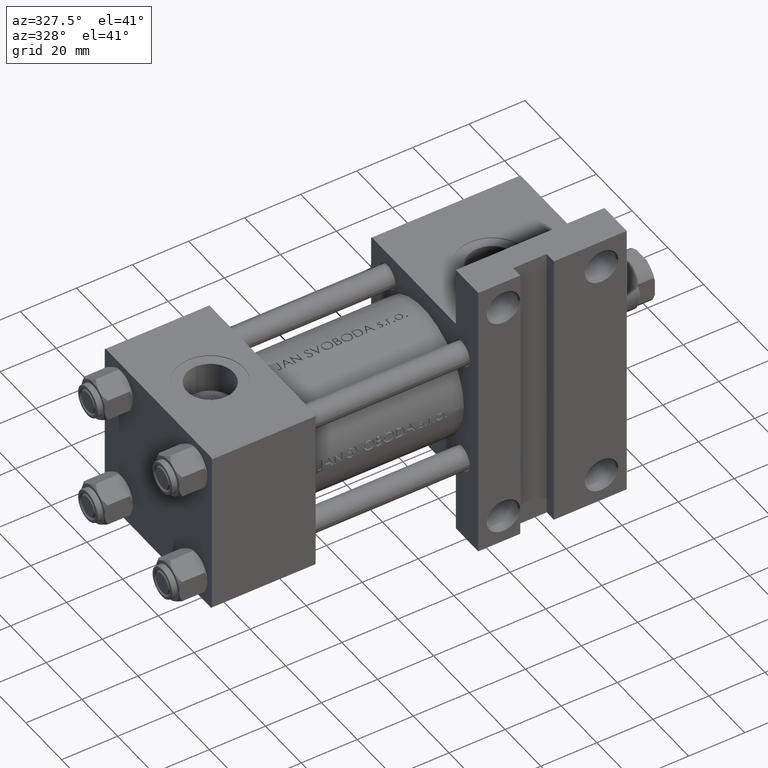
[diagram: clean part render]
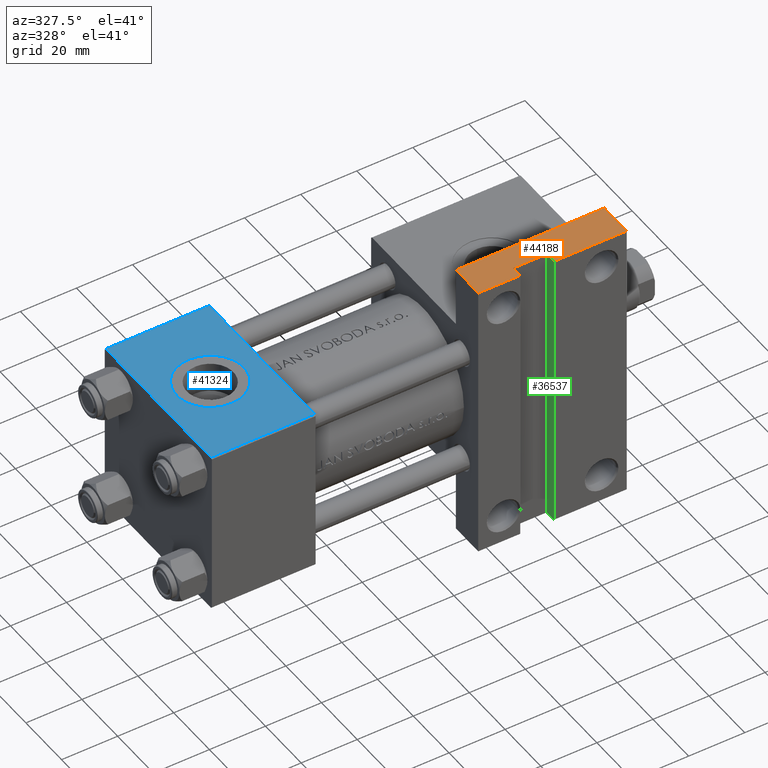
[diagram: same view with three faces highlighted in distinct colors, each labeled with its STEP entity id]
A machine part, auxiliary view with three faces highlighted in distinct colors.
Their STEP definitions:

[orange] entity #44188 — the highlighted planar face has unit normal (0, 0, 1).
#6 = DIRECTION ( 'NONE',  ( -0.000000000000000000, -0.000000000000000000, -1.000000000000000000 ) ) ;
#439 = EDGE_CURVE ( 'NONE', #30036, #33490, #4476, .T. ) ;
#450 = DIRECTION ( 'NONE',  ( -1.000000000000000000, -0.000000000000000000, -0.000000000000000000 ) ) ;
#739 = FACE_OUTER_BOUND ( 'NONE', #33435, .T. ) ;
#1064 = VECTOR ( 'NONE', #6, 1000.000000000000000 ) ;
#1842 = VERTEX_POINT ( 'NONE', #5151 ) ;
#3647 = LINE ( 'NONE', #18706, #26333 ) ;
#3713 = ORIENTED_EDGE ( 'NONE', *, *, #7681, .F. ) ;
#4130 = DIRECTION ( 'NONE',  ( -1.000000000000000000, -0.000000000000000000, -0.000000000000000000 ) ) ;
#4476 = LINE ( 'NONE', #14857, #46300 ) ;
#4687 = DIRECTION ( 'NONE',  ( 0.000000000000000000, -1.000000000000000000, 0.000000000000000000 ) ) ;
#5032 = AXIS2_PLACEMENT_3D ( 'NONE', #42142, #4687, #41654 ) ;
#5151 = CARTESIAN_POINT ( 'NONE',  ( 94.99999999999998579, -51.50000000000000711, -29.99999999999999645 ) ) ;
#5390 = VERTEX_POINT ( 'NONE', #6382 ) ;
#6382 = CARTESIAN_POINT ( 'NONE',  ( 109.9999999999999858, -51.49999999999999289, -25.99999999999999645 ) ) ;
#7681 = EDGE_CURVE ( 'NONE', #20314, #1842, #3647, .T. ) ;
#7752 = CARTESIAN_POINT ( 'NONE',  ( 94.99999999999998579, -51.50000000000000711, -17.49999999999999645 ) ) ;
#8265 = EDGE_CURVE ( 'NONE', #33490, #36203, #32891, .T. ) ;
#9879 = VECTOR ( 'NONE', #14281, 1000.000000000000000 ) ;
#10273 = DIRECTION ( 'NONE',  ( -0.000000000000000000, -0.000000000000000000, -1.000000000000000000 ) ) ;
#10366 = EDGE_CURVE ( 'NONE', #17469, #1842, #29523, .T. ) ;
#11676 = ORIENTED_EDGE ( 'NONE', *, *, #35836, .T. ) ;
#12279 = DIRECTION ( 'NONE',  ( -1.000000000000000000, -0.000000000000000000, -0.000000000000000000 ) ) ;
#14281 = DIRECTION ( 'NONE',  ( 0.000000000000000000, 0.000000000000000000, -1.000000000000000000 ) ) ;
#14857 = CARTESIAN_POINT ( 'NONE',  ( 148.0000000000000000, -51.50000000000000711, -17.49999999999999645 ) ) ;
#15301 = VECTOR ( 'NONE', #21816, 1000.000000000000000 ) ;
#16010 = CARTESIAN_POINT ( 'NONE',  ( 109.9999999999999858, -51.49999999999999289, -25.99999999999999645 ) ) ;
#16474 = LINE ( 'NONE', #20411, #21990 ) ;
#17469 = VERTEX_POINT ( 'NONE', #26512 ) ;
#17688 = LINE ( 'NONE', #31964, #45059 ) ;
#17859 = CARTESIAN_POINT ( 'NONE',  ( 148.0000000000000000, -51.50000000000000711, -29.99999999999999645 ) ) ;
#18706 = CARTESIAN_POINT ( 'NONE',  ( 94.99999999999998579, -51.50000000000000711, -29.99999999999999645 ) ) ;
#18771 = CARTESIAN_POINT ( 'NONE',  ( 109.9999999999999858, -51.49999999999999289, -25.99999999999999645 ) ) ;
#19537 = DIRECTION ( 'NONE',  ( 0.000000000000000000, 0.000000000000000000, -1.000000000000000000 ) ) ;
#20314 = VERTEX_POINT ( 'NONE', #32029 ) ;
#20319 = ORIENTED_EDGE ( 'NONE', *, *, #10366, .T. ) ;
#20411 = CARTESIAN_POINT ( 'NONE',  ( 94.99999999999998579, -51.50000000000000711, -17.49999999999999645 ) ) ;
#21816 = DIRECTION ( 'NONE',  ( -1.000000000000000000, -0.000000000000000000, -0.000000000000000000 ) ) ;
#21859 = PLANE ( 'NONE',  #5032 ) ;
#21951 = ORIENTED_EDGE ( 'NONE', *, *, #8265, .F. ) ;
#21990 = VECTOR ( 'NONE', #12279, 1000.000000000000000 ) ;
#22825 = CARTESIAN_POINT ( 'NONE',  ( 148.0000000000000000, -51.50000000000000711, -17.49999999999999645 ) ) ;
#23155 = EDGE_CURVE ( 'NONE', #30036, #17469, #16474, .T. ) ;
#24659 = ORIENTED_EDGE ( 'NONE', *, *, #23155, .T. ) ;
#26333 = VECTOR ( 'NONE', #4130, 1000.000000000000000 ) ;
#26512 = CARTESIAN_POINT ( 'NONE',  ( 94.99999999999998579, -51.50000000000000711, -17.49999999999999645 ) ) ;
#27395 = EDGE_CURVE ( 'NONE', #35560, #5390, #34221, .T. ) ;
#29523 = LINE ( 'NONE', #7752, #9879 ) ;
#30036 = VERTEX_POINT ( 'NONE', #22825 ) ;
#30040 = ORIENTED_EDGE ( 'NONE', *, *, #439, .F. ) ;
#31964 = CARTESIAN_POINT ( 'NONE',  ( 121.9999999999999858, -51.49999999999999289, -25.99999999999999645 ) ) ;
#32029 = CARTESIAN_POINT ( 'NONE',  ( 109.9999999999999858, -51.49999999999999289, -29.99999999999999645 ) ) ;
#32891 = LINE ( 'NONE', #47914, #15301 ) ;
#32929 = ORIENTED_EDGE ( 'NONE', *, *, #43177, .F. ) ;
#33435 = EDGE_LOOP ( 'NONE', ( #11676, #21951, #30040, #24659, #20319, #3713, #32929, #41268 ) ) ;
#33467 = CARTESIAN_POINT ( 'NONE',  ( 121.9999999999999858, -51.50000000000000711, -25.99999999999999645 ) ) ;
#33490 = VERTEX_POINT ( 'NONE', #17859 ) ;
#34221 = LINE ( 'NONE', #16010, #47154 ) ;
#35560 = VERTEX_POINT ( 'NONE', #33467 ) ;
#35836 = EDGE_CURVE ( 'NONE', #35560, #36203, #17688, .T. ) ;
#36203 = VERTEX_POINT ( 'NONE', #43173 ) ;
#41172 = LINE ( 'NONE', #18771, #1064 ) ;
#41268 = ORIENTED_EDGE ( 'NONE', *, *, #27395, .F. ) ;
#41654 = DIRECTION ( 'NONE',  ( 0.000000000000000000, -0.000000000000000000, -1.000000000000000000 ) ) ;
#42142 = CARTESIAN_POINT ( 'NONE',  ( 94.99999999999998579, -51.50000000000000711, -17.49999999999999645 ) ) ;
#43173 = CARTESIAN_POINT ( 'NONE',  ( 121.9999999999999858, -51.49999999999999289, -29.99999999999999645 ) ) ;
#43177 = EDGE_CURVE ( 'NONE', #5390, #20314, #41172, .T. ) ;
#44188 = ADVANCED_FACE ( 'NONE', ( #739 ), #21859, .T. ) ;
#45059 = VECTOR ( 'NONE', #10273, 1000.000000000000000 ) ;
#46300 = VECTOR ( 'NONE', #19537, 1000.000000000000000 ) ;
#47154 = VECTOR ( 'NONE', #450, 1000.000000000000000 ) ;
#47914 = CARTESIAN_POINT ( 'NONE',  ( 94.99999999999998579, -51.50000000000000711, -29.99999999999999645 ) ) ;

[blue] entity #41324 — the highlighted planar face has unit normal (0, 0, -1).
#88 = EDGE_CURVE ( 'NONE', #11603, #516, #10250, .T. ) ;
#516 = VERTEX_POINT ( 'NONE', #37996 ) ;
#637 = CARTESIAN_POINT ( 'NONE',  ( 18.50000000000000000, -30.00000000000000000, 0.000000000000000000 ) ) ;
#674 = CARTESIAN_POINT ( 'NONE',  ( 18.50000000000000000, -30.00000000000000000, -12.00000000000000178 ) ) ;
#3175 = DIRECTION ( 'NONE',  ( 0.000000000000000000, 0.000000000000000000, -1.000000000000000000 ) ) ;
#4022 = VERTEX_POINT ( 'NONE', #24176 ) ;
#4063 = FACE_OUTER_BOUND ( 'NONE', #18368, .T. ) ;
#4307 = DIRECTION ( 'NONE',  ( 0.000000000000000000, -0.000000000000000000, 1.000000000000000000 ) ) ;
#4589 = DIRECTION ( 'NONE',  ( 0.000000000000000000, 0.000000000000000000, -1.000000000000000000 ) ) ;
#4958 = CARTESIAN_POINT ( 'NONE',  ( 18.50000000000000000, -30.00000000000000000, 12.00000000000000178 ) ) ;
#5717 = EDGE_CURVE ( 'NONE', #516, #18011, #10443, .T. ) ;
#6933 = VECTOR ( 'NONE', #37095, 1000.000000000000000 ) ;
#7680 = ORIENTED_EDGE ( 'NONE', *, *, #44389, .F. ) ;
#7794 = DIRECTION ( 'NONE',  ( 0.000000000000000000, -1.000000000000000000, -8.673617379884036705E-17 ) ) ;
#8340 = EDGE_CURVE ( 'NONE', #4022, #11603, #21327, .T. ) ;
#10250 = LINE ( 'NONE', #33388, #6933 ) ;
#10443 = LINE ( 'NONE', #29403, #17465 ) ;
#10886 = CARTESIAN_POINT ( 'NONE',  ( 37.00000000000000000, -30.00000000000000000, -29.50000000000001776 ) ) ;
#11383 = VECTOR ( 'NONE', #47665, 1000.000000000000000 ) ;
#11603 = VERTEX_POINT ( 'NONE', #32650 ) ;
#13260 = DIRECTION ( 'NONE',  ( 0.000000000000000000, -1.000000000000000000, -8.673617379884036705E-17 ) ) ;
#13586 = CIRCLE ( 'NONE', #30080, 12.00000000000000178 ) ;
#15923 = DIRECTION ( 'NONE',  ( -0.000000000000000000, 1.000000000000000000, 0.000000000000000000 ) ) ;
#16734 = ORIENTED_EDGE ( 'NONE', *, *, #88, .T. ) ;
#17457 = DIRECTION ( 'NONE',  ( 0.000000000000000000, 0.000000000000000000, -1.000000000000000000 ) ) ;
#17465 = VECTOR ( 'NONE', #18808, 1000.000000000000000 ) ;
#17948 = CARTESIAN_POINT ( 'NONE',  ( 18.50000000000000000, -30.00000000000000000, 0.000000000000000000 ) ) ;
#18011 = VERTEX_POINT ( 'NONE', #10886 ) ;
#18368 = EDGE_LOOP ( 'NONE', ( #16734, #25768, #7680, #29530 ) ) ;
#18808 = DIRECTION ( 'NONE',  ( 1.000000000000000000, 0.000000000000000000, 0.000000000000000000 ) ) ;
#19366 = CARTESIAN_POINT ( 'NONE',  ( 37.00000000000000000, -30.00000000000000000, 29.99999999999999289 ) ) ;
#21327 = LINE ( 'NONE', #36344, #11383 ) ;
#21695 = CARTESIAN_POINT ( 'NONE',  ( 37.00000000000000000, -30.00000000000000000, 29.99999999999999289 ) ) ;
#22025 = AXIS2_PLACEMENT_3D ( 'NONE', #637, #7794, #4589 ) ;
#23034 = VERTEX_POINT ( 'NONE', #674 ) ;
#24176 = CARTESIAN_POINT ( 'NONE',  ( 37.00000000000000000, -30.00000000000000000, 29.49999999999999289 ) ) ;
#25368 = ORIENTED_EDGE ( 'NONE', *, *, #36570, .F. ) ;
#25768 = ORIENTED_EDGE ( 'NONE', *, *, #5717, .T. ) ;
#27715 = EDGE_CURVE ( 'NONE', #47868, #23034, #42473, .T. ) ;
#29403 = CARTESIAN_POINT ( 'NONE',  ( 37.00000000000000000, -30.00000000000000000, -29.50000000000001776 ) ) ;
#29530 = ORIENTED_EDGE ( 'NONE', *, *, #8340, .T. ) ;
#30080 = AXIS2_PLACEMENT_3D ( 'NONE', #17948, #13260, #17457 ) ;
#32650 = CARTESIAN_POINT ( 'NONE',  ( 0.000000000000000000, -30.00000000000000000, 29.49999999999999289 ) ) ;
#33388 = CARTESIAN_POINT ( 'NONE',  ( 0.000000000000000000, -30.00000000000000000, 29.99999999999999289 ) ) ;
#33891 = FACE_BOUND ( 'NONE', #34409, .T. ) ;
#34409 = EDGE_LOOP ( 'NONE', ( #25368, #46701 ) ) ;
#36344 = CARTESIAN_POINT ( 'NONE',  ( 37.00000000000000000, -30.00000000000000000, 29.49999999999999289 ) ) ;
#36570 = EDGE_CURVE ( 'NONE', #23034, #47868, #13586, .T. ) ;
#37095 = DIRECTION ( 'NONE',  ( 0.000000000000000000, 0.000000000000000000, -1.000000000000000000 ) ) ;
#37996 = CARTESIAN_POINT ( 'NONE',  ( 0.000000000000000000, -30.00000000000000000, -29.50000000000001776 ) ) ;
#38118 = VECTOR ( 'NONE', #3175, 1000.000000000000000 ) ;
#38123 = AXIS2_PLACEMENT_3D ( 'NONE', #19366, #15923, #4307 ) ;
#38578 = PLANE ( 'NONE',  #38123 ) ;
#41324 = ADVANCED_FACE ( 'NONE', ( #33891, #4063 ), #38578, .F. ) ;
#42473 = CIRCLE ( 'NONE', #22025, 12.00000000000000178 ) ;
#43590 = LINE ( 'NONE', #21695, #38118 ) ;
#44389 = EDGE_CURVE ( 'NONE', #4022, #18011, #43590, .T. ) ;
#46701 = ORIENTED_EDGE ( 'NONE', *, *, #27715, .F. ) ;
#47665 = DIRECTION ( 'NONE',  ( -1.000000000000000000, 0.000000000000000000, 0.000000000000000000 ) ) ;
#47868 = VERTEX_POINT ( 'NONE', #4958 ) ;

[green] entity #36537 — the highlighted planar face has unit normal (1, 0, 0).
#1865 = VERTEX_POINT ( 'NONE', #31764 ) ;
#2552 = AXIS2_PLACEMENT_3D ( 'NONE', #21637, #21390, #25318 ) ;
#5864 = VECTOR ( 'NONE', #11966, 1000.000000000000000 ) ;
#10273 = DIRECTION ( 'NONE',  ( -0.000000000000000000, -0.000000000000000000, -1.000000000000000000 ) ) ;
#10518 = PLANE ( 'NONE',  #2552 ) ;
#10584 = CARTESIAN_POINT ( 'NONE',  ( 121.9999999999999858, 51.50000000000000711, -25.99999999999999645 ) ) ;
#11730 = DIRECTION ( 'NONE',  ( -0.000000000000000000, -1.000000000000000000, -0.000000000000000000 ) ) ;
#11966 = DIRECTION ( 'NONE',  ( -0.000000000000000000, -1.000000000000000000, -0.000000000000000000 ) ) ;
#14072 = EDGE_LOOP ( 'NONE', ( #45122, #37416, #22179, #37305 ) ) ;
#15095 = EDGE_CURVE ( 'NONE', #26445, #1865, #28309, .T. ) ;
#17441 = EDGE_CURVE ( 'NONE', #26445, #35560, #48458, .T. ) ;
#17688 = LINE ( 'NONE', #31964, #45059 ) ;
#19618 = CARTESIAN_POINT ( 'NONE',  ( 121.9999999999999858, -51.49999999999999289, -29.99999999999999645 ) ) ;
#21390 = DIRECTION ( 'NONE',  ( 1.000000000000000000, 0.000000000000000000, 0.000000000000000000 ) ) ;
#21637 = CARTESIAN_POINT ( 'NONE',  ( 121.9999999999999858, -51.49999999999999289, -25.99999999999999645 ) ) ;
#22179 = ORIENTED_EDGE ( 'NONE', *, *, #17441, .F. ) ;
#22811 = LINE ( 'NONE', #19618, #5864 ) ;
#25318 = DIRECTION ( 'NONE',  ( 0.000000000000000000, 0.000000000000000000, -1.000000000000000000 ) ) ;
#25351 = CARTESIAN_POINT ( 'NONE',  ( 121.9999999999999858, 51.50000000000000711, -25.99999999999999645 ) ) ;
#25584 = DIRECTION ( 'NONE',  ( -0.000000000000000000, -0.000000000000000000, -1.000000000000000000 ) ) ;
#26445 = VERTEX_POINT ( 'NONE', #10584 ) ;
#28309 = LINE ( 'NONE', #25351, #31938 ) ;
#31764 = CARTESIAN_POINT ( 'NONE',  ( 121.9999999999999858, 51.50000000000000711, -29.99999999999999645 ) ) ;
#31938 = VECTOR ( 'NONE', #25584, 1000.000000000000000 ) ;
#31964 = CARTESIAN_POINT ( 'NONE',  ( 121.9999999999999858, -51.49999999999999289, -25.99999999999999645 ) ) ;
#32222 = FACE_OUTER_BOUND ( 'NONE', #14072, .T. ) ;
#33467 = CARTESIAN_POINT ( 'NONE',  ( 121.9999999999999858, -51.50000000000000711, -25.99999999999999645 ) ) ;
#35560 = VERTEX_POINT ( 'NONE', #33467 ) ;
#35836 = EDGE_CURVE ( 'NONE', #35560, #36203, #17688, .T. ) ;
#35957 = VECTOR ( 'NONE', #11730, 1000.000000000000000 ) ;
#36203 = VERTEX_POINT ( 'NONE', #43173 ) ;
#36537 = ADVANCED_FACE ( 'NONE', ( #32222 ), #10518, .F. ) ;
#37133 = CARTESIAN_POINT ( 'NONE',  ( 121.9999999999999858, -51.49999999999999289, -25.99999999999999645 ) ) ;
#37305 = ORIENTED_EDGE ( 'NONE', *, *, #15095, .T. ) ;
#37416 = ORIENTED_EDGE ( 'NONE', *, *, #35836, .F. ) ;
#41298 = EDGE_CURVE ( 'NONE', #1865, #36203, #22811, .T. ) ;
#43173 = CARTESIAN_POINT ( 'NONE',  ( 121.9999999999999858, -51.49999999999999289, -29.99999999999999645 ) ) ;
#45059 = VECTOR ( 'NONE', #10273, 1000.000000000000000 ) ;
#45122 = ORIENTED_EDGE ( 'NONE', *, *, #41298, .T. ) ;
#48458 = LINE ( 'NONE', #37133, #35957 ) ;